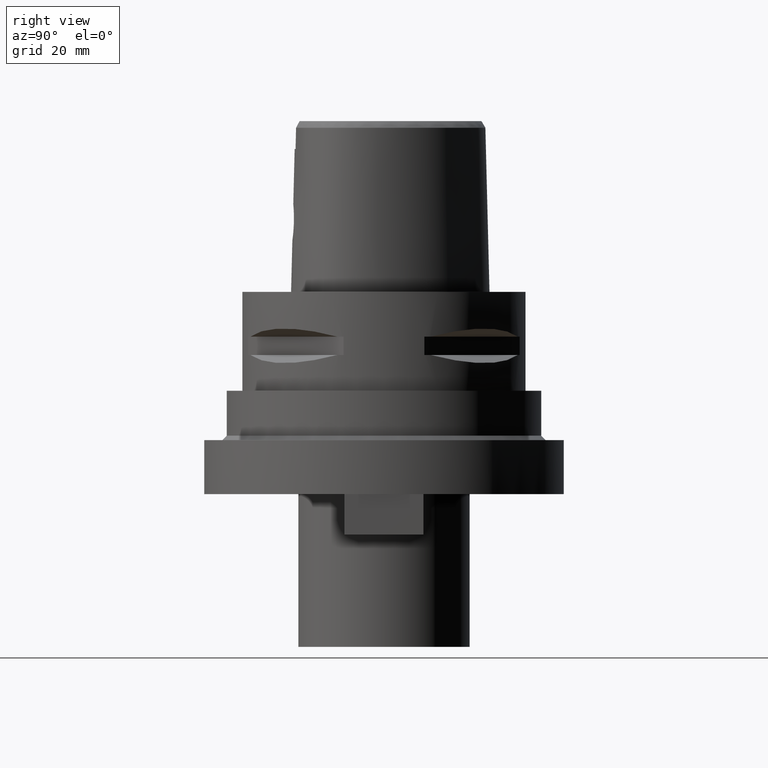
[diagram: clean part render]
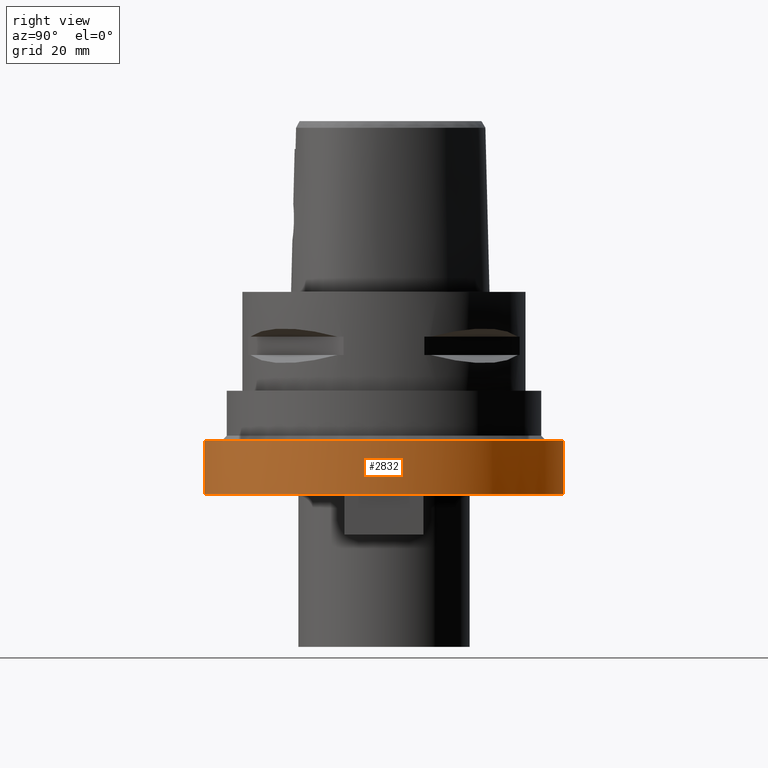
[diagram: same view with one face highlighted and labeled with its STEP entity id]
A machine part, right view. The second image highlights one B-rep face of the part: STEP entity #2832.
In plain terms, the highlighted cylindrical surface (partial cylindrical patch) has radius 40 mm, axis along (0, 0, -1).
Its self-contained STEP definition (entity closure, byte-faithful):
#588=CARTESIAN_POINT('',(0.E0,0.E0,-3.3E1));
#589=DIRECTION('',(0.E0,0.E0,-1.E0));
#590=DIRECTION('',(0.E0,1.E0,0.E0));
#591=AXIS2_PLACEMENT_3D('',#588,#589,#590);
#612=DIRECTION('',(0.E0,0.E0,-1.E0));
#613=VECTOR('',#612,1.2E1);
#614=CARTESIAN_POINT('',(0.E0,-4.E1,-3.3E1));
#615=LINE('',#614,#613);
#619=DIRECTION('',(0.E0,0.E0,-1.E0));
#620=VECTOR('',#619,1.2E1);
#621=CARTESIAN_POINT('',(0.E0,4.E1,-3.3E1));
#622=LINE('',#621,#620);
#626=CARTESIAN_POINT('',(0.E0,0.E0,-4.5E1));
#627=DIRECTION('',(0.E0,0.E0,1.E0));
#628=DIRECTION('',(0.E0,-1.E0,0.E0));
#629=AXIS2_PLACEMENT_3D('',#626,#627,#628);
#1810=CARTESIAN_POINT('',(0.E0,-4.E1,-3.3E1));
#1811=CARTESIAN_POINT('',(0.E0,4.E1,-3.3E1));
#1812=VERTEX_POINT('',#1810);
#1813=VERTEX_POINT('',#1811);
#1814=CARTESIAN_POINT('',(0.E0,4.E1,-4.5E1));
#1815=VERTEX_POINT('',#1814);
#1816=CARTESIAN_POINT('',(0.E0,-4.E1,-4.5E1));
#1817=VERTEX_POINT('',#1816);
#2820=CARTESIAN_POINT('',(0.E0,0.E0,3.95E0));
#2821=DIRECTION('',(0.E0,0.E0,-1.E0));
#2822=DIRECTION('',(0.E0,-1.E0,0.E0));
#2823=AXIS2_PLACEMENT_3D('',#2820,#2821,#2822);
#2824=CYLINDRICAL_SURFACE('',#2823,4.E1);
#2825=ORIENTED_EDGE('',*,*,#2810,.T.);
#2827=ORIENTED_EDGE('',*,*,#2826,.F.);
#2828=ORIENTED_EDGE('',*,*,#2813,.F.);
#2829=ORIENTED_EDGE('',*,*,#2796,.F.);
#2830=EDGE_LOOP('',(#2825,#2827,#2828,#2829));
#2831=FACE_OUTER_BOUND('',#2830,.F.);
#592=CIRCLE('',#591,4.E1);
#630=CIRCLE('',#629,4.E1);
#2796=EDGE_CURVE('',#1813,#1812,#592,.T.);
#2810=EDGE_CURVE('',#1813,#1815,#622,.T.);
#2813=EDGE_CURVE('',#1812,#1817,#615,.T.);
#2826=EDGE_CURVE('',#1817,#1815,#630,.T.);
#2832=ADVANCED_FACE('',(#2831),#2824,.T.);